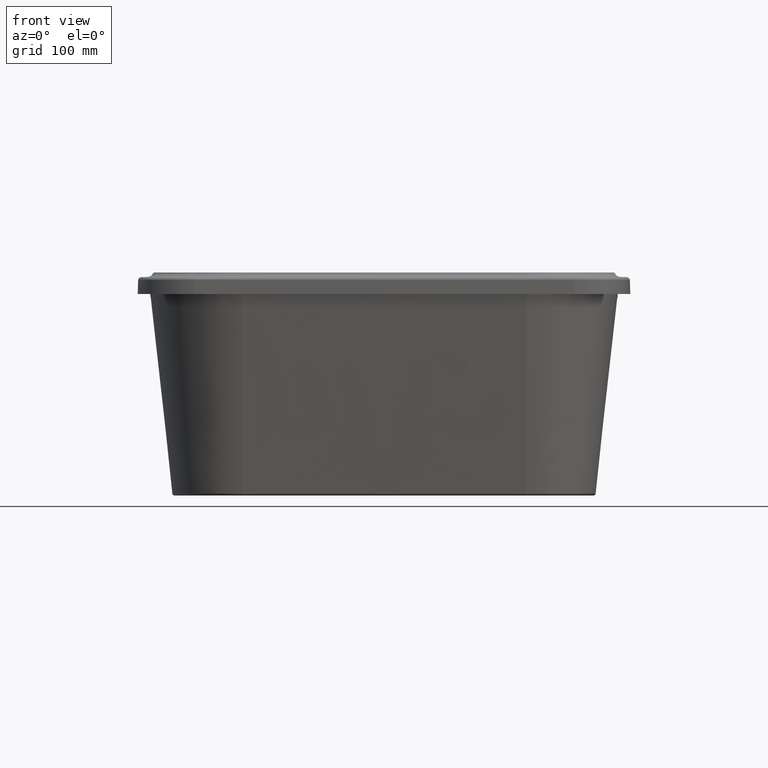
[diagram: clean part render]
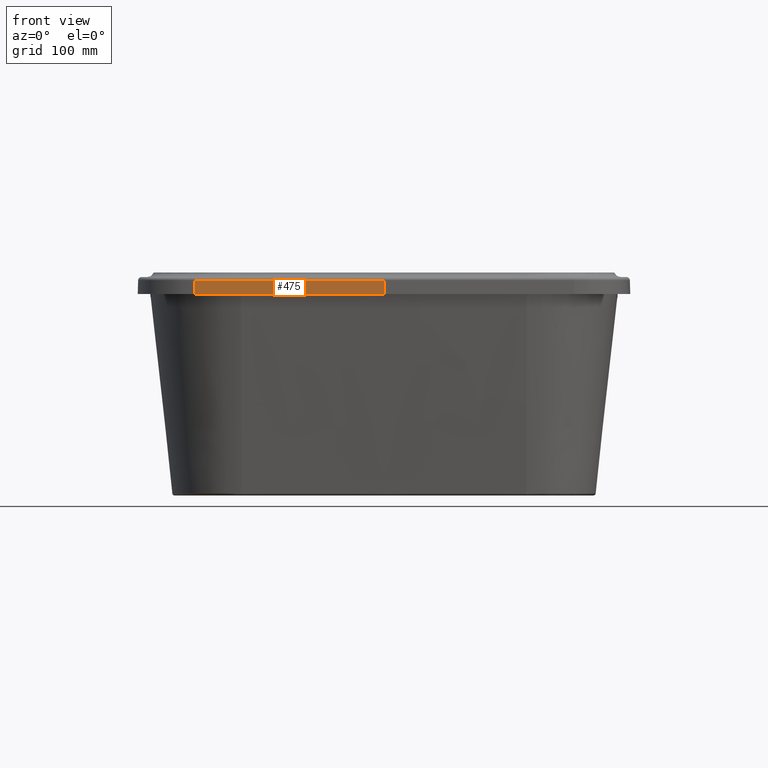
[diagram: same view with one face highlighted and labeled with its STEP entity id]
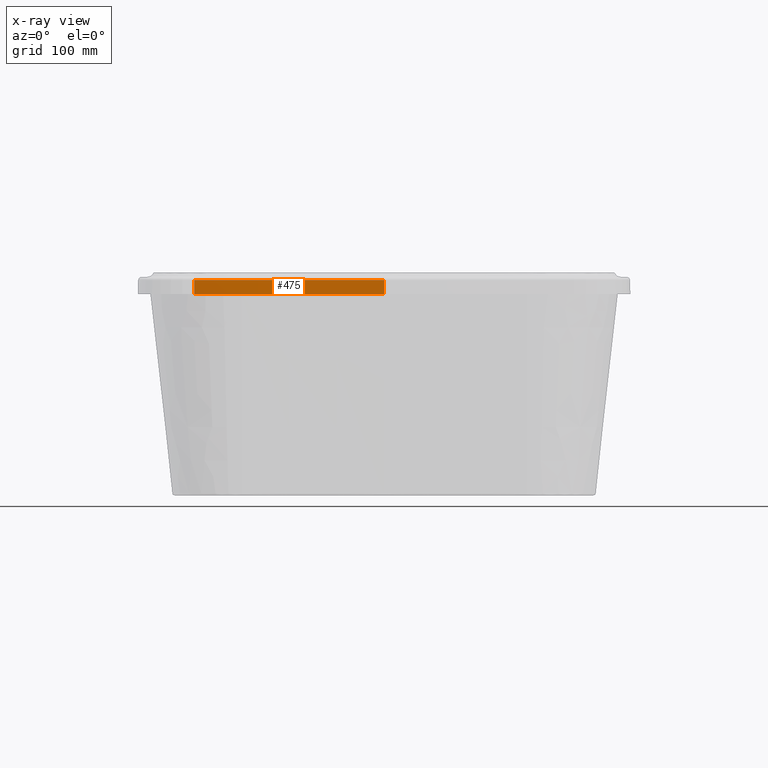
[diagram: x-ray of the same camera — body ghosted, the highlighted face saturated]
A machine part, front view. The second image highlights one B-rep face of the part: STEP entity #475.
The next image is the same camera in x-ray: the body ghosted, the highlighted face saturated — about 0% of this face is hidden behind the body in this view.
In plain terms, the highlighted conical surface has half-angle 1.876 deg.
Its self-contained STEP definition (entity closure, byte-faithful):
#56=CONICAL_SURFACE('',#3043,8158.,1.8762);
#244=CIRCLE('',#3013,8158.);
#258=CIRCLE('',#3042,8157.59504362711);
#343=LINE('',#11978,#369);
#369=VECTOR('',#3314,1.);
#475=ADVANCED_FACE('',(#753),#56,.T.);
#753=FACE_OUTER_BOUND('',#953,.T.);
#953=EDGE_LOOP('',(#1516,#1517,#1518,#1519));
#1516=ORIENTED_EDGE('',*,*,#2465,.F.);
#1517=ORIENTED_EDGE('',*,*,#2464,.T.);
#1518=ORIENTED_EDGE('',*,*,#2430,.T.);
#1519=ORIENTED_EDGE('',*,*,#2466,.F.);
#2087=VERTEX_POINT('',#11837);
#2088=VERTEX_POINT('',#11839);
#2108=VERTEX_POINT('',#11977);
#2109=VERTEX_POINT('',#11981);
#2430=EDGE_CURVE('',#2088,#2087,#244,.T.);
#2464=EDGE_CURVE('',#2108,#2088,#343,.T.);
#2465=EDGE_CURVE('',#2108,#2109,#258,.T.);
#2466=EDGE_CURVE('',#2109,#2087,#2837,.T.);
#2837=B_SPLINE_CURVE_WITH_KNOTS('',3,(#11982,#11983,#11984,#11985),
 .UNSPECIFIED.,.F.,.F.,(4,4),(0.,1.),.UNSPECIFIED.);
#3013=AXIS2_PLACEMENT_3D('',#11838,#3247,#3248);
#3042=AXIS2_PLACEMENT_3D('',#11980,#3317,#3318);
#3043=AXIS2_PLACEMENT_3D('',#11986,#3319,#3320);
#3247=DIRECTION('',(0.,0.,1.));
#3248=DIRECTION('',(-1.,0.,0.));
#3314=DIRECTION('',(-0.000683363628504098,-0.0327328830458668,-0.99946390199029));
#3317=DIRECTION('',(0.,0.,1.));
#3318=DIRECTION('',(1.,0.,0.));
#3319=DIRECTION('',(0.,0.,-1.));
#3320=DIRECTION('',(-1.,0.,0.));
#11837=CARTESIAN_POINT('',(-2.84093361943607E-14,-220.999999999972,159.736));
#11838=CARTESIAN_POINT('',(-2.8421709430404E-14,7937.00000000003,159.736));
#11839=CARTESIAN_POINT('',(-170.277270408964,-219.222756348776,159.736));
#11977=CARTESIAN_POINT('',(-170.268817986089,-218.817888196791,172.098220046657));
#11978=CARTESIAN_POINT('',(-170.277270408964,-219.222756348776,159.736));
#11980=CARTESIAN_POINT('',(-2.8421709430404E-14,7937.00000000003,172.098220046658));
#11981=CARTESIAN_POINT('',(7.35039722081821E-13,-220.595043627082,172.098220046657));
#11982=CARTESIAN_POINT('',(1.47010418940733E-12,-220.595043627082,172.098220046656));
#11983=CARTESIAN_POINT('',(1.47012898583363E-12,-220.730029084712,167.977480031104));
#11984=CARTESIAN_POINT('',(1.47015378225992E-12,-220.865014542342,163.856740015552));
#11985=CARTESIAN_POINT('',(1.47017857868621E-12,-220.999999999972,159.736));
#11986=CARTESIAN_POINT('',(-2.8421709430404E-14,7937.00000000003,159.736));